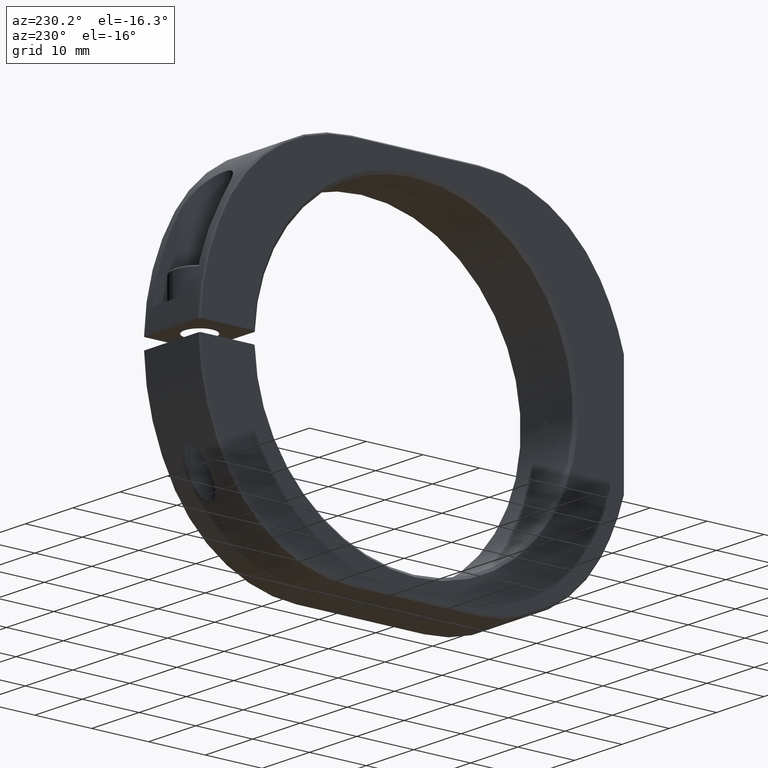
[diagram: clean part render]
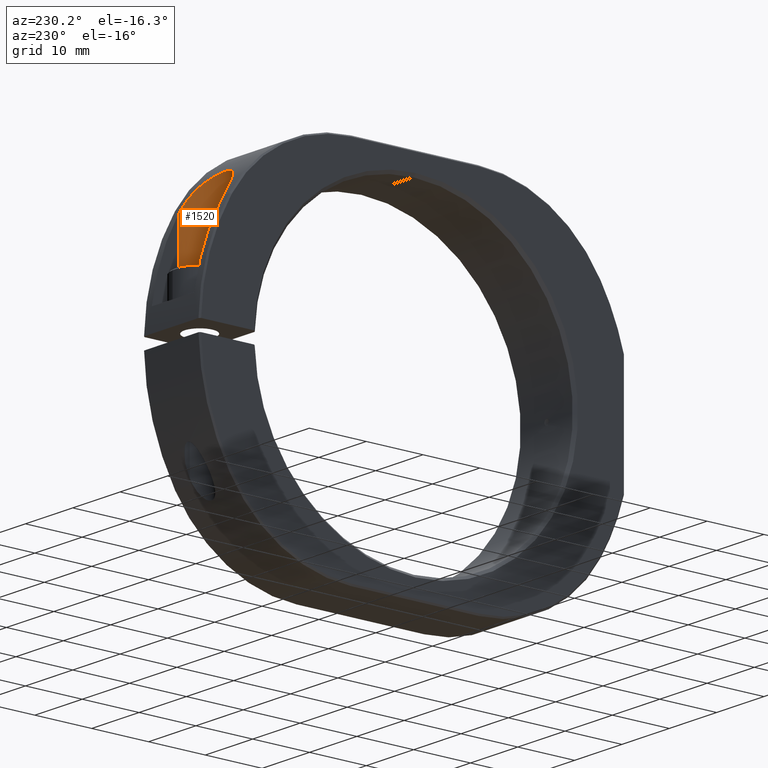
[diagram: same view with one face highlighted and labeled with its STEP entity id]
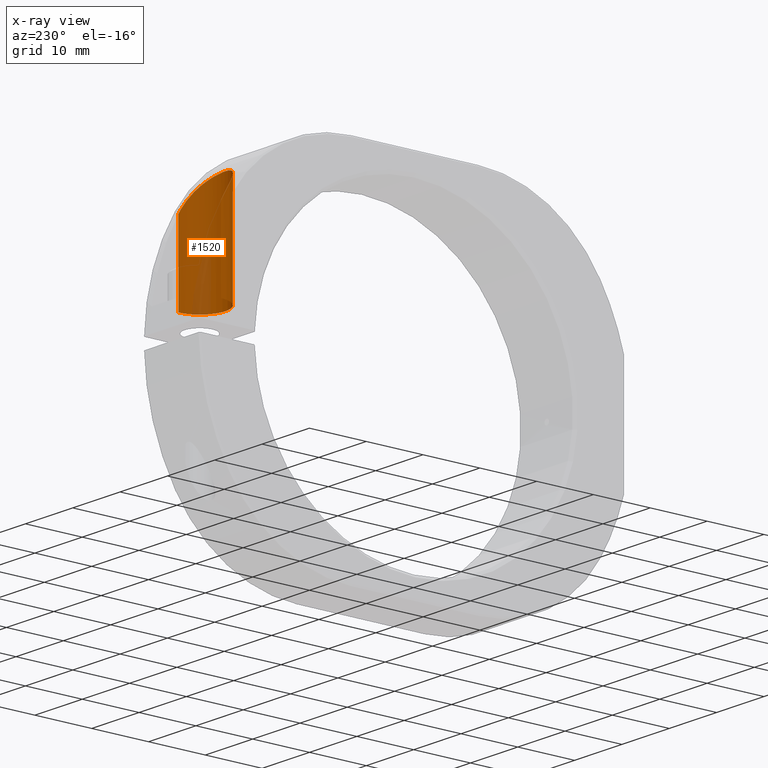
[diagram: x-ray of the same camera — body ghosted, the highlighted face saturated]
A machine part, auxiliary view. The second image highlights one B-rep face of the part: STEP entity #1520.
The next image is the same camera in x-ray: the body ghosted, the highlighted face saturated — about 13% of this face is hidden behind the body in this view.
In plain terms, the highlighted cylindrical surface (edge-blend (fillet) strip) has radius 4.5 mm, axis along (-0, -0, 1).
Its self-contained STEP definition (entity closure, byte-faithful):
#27 = CARTESIAN_POINT ( 'NONE',  ( -4.263316103899811971, 21.23370572252509803, 24.57720615160066657 ) ) ;
#31 = CARTESIAN_POINT ( 'NONE',  ( -1.216847635269174832, 24.14252217428023428, 21.15502478213978677 ) ) ;
#32 = VERTEX_POINT ( 'NONE', #1781 ) ;
#42 = CARTESIAN_POINT ( 'NONE',  ( -8.578126372562776325, 22.27802937565321884, 23.48881789367599993 ) ) ;
#60 = CARTESIAN_POINT ( 'NONE',  ( -5.491432396251688886, 25.56653787331843120, -36.47794231119922870 ) ) ;
#65 = B_SPLINE_CURVE_WITH_KNOTS ( 'NONE', 3,
 ( #570, #905, #1107, #409, #1835, #1097, #2000, #2168, #42, #579, #1294, #1286, #1261, #1074, #218, #1474, #1853, #1663, #193, #1847, #1084, #27, #1454, #1652, #1829, #1272, #744, #2006, #923, #201, #1277, #211, #392, #2178, #225, #31, #1459, #1480, #754, #560 ),
 .UNSPECIFIED., .F., .F.,
 ( 4, 2, 2, 2, 2, 2, 2, 2, 2, 2, 2, 2, 2, 2, 2, 2, 2, 2, 2, 4 ),
 ( 0.0000000000000000000, 0.002151921242727296377, 0.003227881864090951722, 0.004303842485454607500, 0.005379803106818261543, 0.006455763728181918189, 0.007531724349545573099, 0.008069704660227402723, 0.008607684970909228878, 0.009145665281591058501, 0.009683645592272884656, 0.01022162590295471428, 0.01075960621363654043, 0.01129758652431836832, 0.01183556683500019795, 0.01291152745636386066, 0.01398748807772752338, 0.01506344869909118610, 0.01613940932045485055, 0.01721536994181851674 ),
 .UNSPECIFIED. ) ;
#85 = VECTOR ( 'NONE', #1658, 1000.000000000000000 ) ;
#193 = CARTESIAN_POINT ( 'NONE',  ( -5.152214563740991515, 21.07562409086569133, 24.73118802385863546 ) ) ;
#201 = CARTESIAN_POINT ( 'NONE',  ( -2.428023409609481487, 22.25643928206297062, 23.51267621544017672 ) ) ;
#211 = CARTESIAN_POINT ( 'NONE',  ( -1.874225532575525710, 22.87574681426966805, 22.80154902093731550 ) ) ;
#218 = CARTESIAN_POINT ( 'NONE',  ( -6.244877631893561265, 21.12629184266302929, 24.68211238552743225 ) ) ;
#225 = CARTESIAN_POINT ( 'NONE',  ( -1.378885338029957941, 23.72619761025756091, 21.72822551751021791 ) ) ;
#240 = AXIS2_PLACEMENT_3D ( 'NONE', #60, #2197, #1716 ) ;
#264 = EDGE_CURVE ( 'NONE', #517, #2210, #65, .T. ) ;
#306 = CARTESIAN_POINT ( 'NONE',  ( -9.970450545396042585, 25.13249130941601450, 19.63167938931299261 ) ) ;
#392 = CARTESIAN_POINT ( 'NONE',  ( -1.725496097425052611, 23.09106765620882484, 22.54129411352125345 ) ) ;
#402 = ORIENTED_EDGE ( 'NONE', *, *, #1807, .F. ) ;
#409 = CARTESIAN_POINT ( 'NONE',  ( -9.612683082362574183, 23.74618758371969207, 21.70136905847789066 ) ) ;
#416 = FACE_OUTER_BOUND ( 'NONE', #842, .T. ) ;
#452 = AXIS2_PLACEMENT_3D ( 'NONE', #1152, #609, #1721 ) ;
#517 = VERTEX_POINT ( 'NONE', #614 ) ;
#525 = ORIENTED_EDGE ( 'NONE', *, *, #1789, .F. ) ;
#552 = EDGE_CURVE ( 'NONE', #517, #1839, #1529, .T. ) ;
#560 = CARTESIAN_POINT ( 'NONE',  ( -1.012414247107335186, 25.13249130941601450, 19.63167938931299616 ) ) ;
#568 = CARTESIAN_POINT ( 'NONE',  ( -0.9914323962516881084, 25.42399544479476603, 19.14062798887649919 ) ) ;
#570 = CARTESIAN_POINT ( 'NONE',  ( -9.970450545396042585, 25.13249130941601450, 19.63167938931299261 ) ) ;
#572 = ORIENTED_EDGE ( 'NONE', *, *, #264, .T. ) ;
#579 = CARTESIAN_POINT ( 'NONE',  ( -8.108984433217392152, 21.89361135943496350, 23.90571377239155382 ) ) ;
#609 = DIRECTION ( 'NONE',  ( -0.0000000000000000000, 1.298921392457120931E-16, -1.000000000000000000 ) ) ;
#614 = CARTESIAN_POINT ( 'NONE',  ( -9.970450545396042585, 25.13249130941601450, 19.63167938931299261 ) ) ;
#636 = CARTESIAN_POINT ( 'NONE',  ( -1.012414247107335186, 25.13249130941601450, 19.63167938931299616 ) ) ;
#744 = CARTESIAN_POINT ( 'NONE',  ( -3.174533311452054196, 21.70552691783204580, 24.10107765658395707 ) ) ;
#754 = CARTESIAN_POINT ( 'NONE',  ( -1.030679218342780867, 24.94401121428145984, 19.94517310378591191 ) ) ;
#780 = ORIENTED_EDGE ( 'NONE', *, *, #1944, .T. ) ;
#842 = EDGE_LOOP ( 'NONE', ( #1993, #572, #402, #525, #1367, #780 ) ) ;
#857 = LINE ( 'NONE', #935, #1127 ) ;
#882 = CYLINDRICAL_SURFACE ( 'NONE', #240, 4.500000000000000888 ) ;
#905 = CARTESIAN_POINT ( 'NONE',  ( -9.934130899445626994, 24.75770121334930352, 20.25505736076259211 ) ) ;
#923 = CARTESIAN_POINT ( 'NONE',  ( -2.780396334894827071, 21.97166787569118185, 23.82080493940535604 ) ) ;
#932 = LINE ( 'NONE', #1463, #85 ) ;
#935 = CARTESIAN_POINT ( 'NONE',  ( -9.991432396251688886, 25.56653787331843120, -36.47794231119922870 ) ) ;
#945 = DIRECTION ( 'NONE',  ( -0.0000000000000000000, -0.0000000000000000000, 1.000000000000000000 ) ) ;
#1062 = CARTESIAN_POINT ( 'NONE',  ( -1.012414247107335186, 25.13249130941601450, 19.63167938931299616 ) ) ;
#1074 = CARTESIAN_POINT ( 'NONE',  ( -6.421364698590265263, 21.16010403866321354, 24.64927850482087734 ) ) ;
#1084 = CARTESIAN_POINT ( 'NONE',  ( -4.609503398101852945, 21.15021527224965325, 24.65890770410883448 ) ) ;
#1097 = CARTESIAN_POINT ( 'NONE',  ( -9.272208666981319070, 23.11393141616185787, 22.51318250141103050 ) ) ;
#1107 = CARTESIAN_POINT ( 'NONE',  ( -9.849513237403831667, 24.36210399782787661, 20.85128296708191797 ) ) ;
#1108 = CARTESIAN_POINT ( 'NONE',  ( -0.9914323962516881084, 25.56653787331843120, 5.000000000000004441 ) ) ;
#1127 = VECTOR ( 'NONE', #945, 1000.000000000000000 ) ;
#1138 = CARTESIAN_POINT ( 'NONE',  ( -9.991432396251688886, 25.56653787331843120, 5.000000000000004441 ) ) ;
#1152 = CARTESIAN_POINT ( 'NONE',  ( -5.491432396251688886, 25.56653787331843120, 5.000000000000004441 ) ) ;
#1199 = CARTESIAN_POINT ( 'NONE',  ( -9.984697020544626156, 25.27950369485717275, 19.38715776620702869 ) ) ;
#1251 = CARTESIAN_POINT ( 'NONE',  ( -9.991432396251688886, 25.56653787331843120, 18.89096990085539574 ) ) ;
#1261 = CARTESIAN_POINT ( 'NONE',  ( -6.937057107266367595, 21.29033604232263244, 24.52167188787657892 ) ) ;
#1272 = CARTESIAN_POINT ( 'NONE',  ( -3.315257667233644234, 21.62421755909391052, 24.18490279876264282 ) ) ;
#1277 = CARTESIAN_POINT ( 'NONE',  ( -2.226072024344518230, 22.45816793721671800, 23.28744203671660529 ) ) ;
#1286 = CARTESIAN_POINT ( 'NONE',  ( -7.265482492196149167, 21.41800136262986243, 24.39533740340131018 ) ) ;
#1294 = CARTESIAN_POINT ( 'NONE',  ( -7.848364845418227098, 21.71913896580931080, 24.08782574088166939 ) ) ;
#1367 = ORIENTED_EDGE ( 'NONE', *, *, #1977, .T. ) ;
#1454 = CARTESIAN_POINT ( 'NONE',  ( -4.095342100835420496, 21.28504737944327374, 24.52669069723504336 ) ) ;
#1459 = CARTESIAN_POINT ( 'NONE',  ( -1.154495780775571800, 24.34862950562516204, 20.85831457940059153 ) ) ;
#1463 = CARTESIAN_POINT ( 'NONE',  ( -0.9914323962516881084, 25.56653787331843120, -36.47794231119922870 ) ) ;
#1474 = CARTESIAN_POINT ( 'NONE',  ( -5.881979027909108204, 21.07978650240834284, 24.72717150118630869 ) ) ;
#1480 = CARTESIAN_POINT ( 'NONE',  ( -1.061463761359120239, 24.74941004205651751, 20.25326587055320360 ) ) ;
#1492 = B_SPLINE_CURVE_WITH_KNOTS ( 'NONE', 3,
 ( #1806, #568, #1999, #1062 ),
 .UNSPECIFIED., .F., .F.,
 ( 4, 4 ),
 ( 0.0000000000000000000, 0.0008497603766338589432 ),
 .UNSPECIFIED. ) ;
#1520 = ADVANCED_FACE ( 'NONE', ( #416 ), #882, .F. ) ;
#1529 = B_SPLINE_CURVE_WITH_KNOTS ( 'NONE', 3,
 ( #306, #1199, #2282, #1602 ),
 .UNSPECIFIED., .F., .F.,
 ( 4, 4 ),
 ( 0.01860463484730418005, 0.01944876895503940342 ),
 .UNSPECIFIED. ) ;
#1540 = VERTEX_POINT ( 'NONE', #1108 ) ;
#1602 = CARTESIAN_POINT ( 'NONE',  ( -9.991432396251688886, 25.56653787331843120, 18.89096990085539574 ) ) ;
#1652 = CARTESIAN_POINT ( 'NONE',  ( -3.769152541649083421, 21.40553065576534664, 24.40673906787846548 ) ) ;
#1658 = DIRECTION ( 'NONE',  ( -0.0000000000000000000, -0.0000000000000000000, 1.000000000000000000 ) ) ;
#1663 = CARTESIAN_POINT ( 'NONE',  ( -5.334026743425810402, 21.06560399014957241, 24.74083750915265512 ) ) ;
#1716 = DIRECTION ( 'NONE',  ( 1.000000000000000000, 0.0000000000000000000, 0.0000000000000000000 ) ) ;
#1721 = DIRECTION ( 'NONE',  ( 0.0000000000000000000, -1.000000000000000000, -1.927470528863118556E-16 ) ) ;
#1781 = CARTESIAN_POINT ( 'NONE',  ( -0.9914323962516881084, 25.56653787331843120, 18.89096990085539574 ) ) ;
#1789 = EDGE_CURVE ( 'NONE', #1540, #32, #932, .T. ) ;
#1806 = CARTESIAN_POINT ( 'NONE',  ( -0.9914323962516881084, 25.56653787331843120, 18.89096990085539574 ) ) ;
#1807 = EDGE_CURVE ( 'NONE', #32, #2210, #1492, .T. ) ;
#1829 = CARTESIAN_POINT ( 'NONE',  ( -3.612014835827856540, 21.47442160606323824, 24.33753321677654213 ) ) ;
#1834 = CIRCLE ( 'NONE', #452, 4.500000000000000888 ) ;
#1835 = CARTESIAN_POINT ( 'NONE',  ( -9.515255821529816416, 23.53715553251091563, 21.97733169620473959 ) ) ;
#1839 = VERTEX_POINT ( 'NONE', #1251 ) ;
#1847 = CARTESIAN_POINT ( 'NONE',  ( -4.789290278385016641, 21.11790080275008918, 24.69025467392335571 ) ) ;
#1853 = CARTESIAN_POINT ( 'NONE',  ( -5.698341751530301202, 21.06760790288130991, 24.73890377463647994 ) ) ;
#1944 = EDGE_CURVE ( 'NONE', #2083, #1839, #857, .T. ) ;
#1977 = EDGE_CURVE ( 'NONE', #1540, #2083, #1834, .T. ) ;
#1993 = ORIENTED_EDGE ( 'NONE', *, *, #552, .F. ) ;
#1999 = CARTESIAN_POINT ( 'NONE',  ( -0.9981905149126529819, 25.27926900551332423, 19.38754811848321324 ) ) ;
#2000 = CARTESIAN_POINT ( 'NONE',  ( -9.125033203168877449, 22.89810592253456889, 22.77481357687928210 ) ) ;
#2006 = CARTESIAN_POINT ( 'NONE',  ( -2.907056294390187645, 21.87920453719888414, 23.91909324682843874 ) ) ;
#2083 = VERTEX_POINT ( 'NONE', #1138 ) ;
#2168 = CARTESIAN_POINT ( 'NONE',  ( -8.778175907422513191, 22.48094214610951624, 23.26158685644883661 ) ) ;
#2178 = CARTESIAN_POINT ( 'NONE',  ( -1.478623334920205590, 23.51529619084590550, 22.00576086800305120 ) ) ;
#2197 = DIRECTION ( 'NONE',  ( -0.0000000000000000000, -0.0000000000000000000, 1.000000000000000000 ) ) ;
#2210 = VERTEX_POINT ( 'NONE', #636 ) ;
#2282 = CARTESIAN_POINT ( 'NONE',  ( -9.991432396251688886, 25.42421632885231730, 19.14024111815980334 ) ) ;